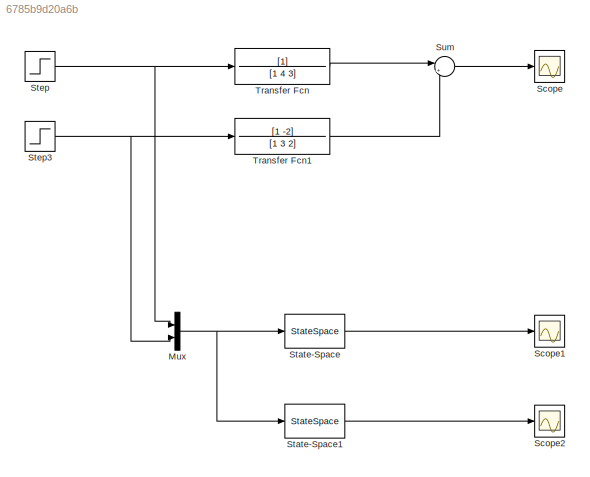
MODEL slx_6785b9d20a6b
KIND model
CONFIG AbsTol = auto
CONFIG EnableMultiTasking = off
CONFIG FixedStep = auto
CONFIG MaxStep = auto
CONFIG MinStep = auto
CONFIG RelTol = 1e-3
CONFIG SampleTimeConstraint = Unconstrained
CONFIG SolverName = VariableStepAuto
CONFIG StartTime = 0.0
CONFIG StopTime = 10.0
BLOCK [Mux] Mux
  DisplayOption = bar
  Inputs = 2
  Ports = [2, 1]
BLOCK [Scope] Scope
  Floating = off
  NumInputPorts = 1
  Ports = [1]
  ScopeSpecificationString = Simulink.scopes.TimeScopeBlockCfg('CurrentConfiguration', extmgr.ConfigurationSet(extmgr.Configuration('Core','General UI',true),extmgr.Configuration('Core','Source UI',true),extmgr.Configuration('Sources','WiredSimulink',true),extmgr.Configuration('Visuals','Time Domain',true,'SerializedDisplays',{struct('MinYLimReal','-0.54334','MaxYLimReal','2.65264','YLabelReal','','MinYLimMag','0.00000','MaxY...<+1352ch>
BLOCK [Scope] Scope1
  Floating = off
  NumInputPorts = 1
  Ports = [1]
  ScopeSpecificationString = Simulink.scopes.TimeScopeBlockCfg('CurrentConfiguration', extmgr.ConfigurationSet(extmgr.Configuration('Core','General UI',true),extmgr.Configuration('Core','Source UI',true),extmgr.Configuration('Sources','WiredSimulink',true,'DataLoggingVariableName','ScopeData1'),extmgr.Configuration('Visuals','Time Domain',true,'SerializedDisplays',{struct('MinYLimReal','-1.04406','MaxYLimReal','1.87301','YLab...<+1399ch>
BLOCK [Scope] Scope2
  Floating = off
  NumInputPorts = 1
  Ports = [1]
  ScopeSpecificationString = Simulink.scopes.TimeScopeBlockCfg('CurrentConfiguration', extmgr.ConfigurationSet(extmgr.Configuration('Core','General UI',true),extmgr.Configuration('Core','Source UI',true),extmgr.Configuration('Sources','WiredSimulink',true,'DataLoggingVariableName','ScopeData2'),extmgr.Configuration('Visuals','Time Domain',true,'SerializedDisplays',{struct('MinYLimReal','-0.54334','MaxYLimReal','2.65264','YLab...<+1371ch>
BLOCK [StateSpace] State-Space
  A = A_c
  B = B_c
  C = C_c
  D = [0 0]
  InitialCondition = 0
  Ports = [1, 1]
BLOCK [StateSpace] State-Space1
  A = A_o
  B = B_o
  C = C_o
  D = [0 0]
  InitialCondition = 0
  Ports = [1, 1]
BLOCK [Step] Step
  SampleTime = 0
  Time = 0
BLOCK [Step] Step3
  After = -2
  SampleTime = 0
  Time = 0
BLOCK [Sum] Sum
  Inputs = |++
  Ports = [2, 1]
BLOCK [TransferFcn] Transfer Fcn
  Denominator = [1 4 3]
BLOCK [TransferFcn] Transfer Fcn1
  Denominator = [1 3 2]
  Numerator = [1 -2]
NET Mux:1 -> State-Space1:1, State-Space:1
LINE State-Space1:1 -> Scope2:1
LINE State-Space:1 -> Scope1:1
NET Step3:1 -> Mux:2, Transfer Fcn1:1
NET Step:1 -> Mux:1, Transfer Fcn:1
LINE Sum:1 -> Scope:1
LINE Transfer Fcn1:1 -> Sum:2
LINE Transfer Fcn:1 -> Sum:1
note: NET lines group one-source signal fan-out (src -> all destinations, sorted); 1:1 wires keep LINE
